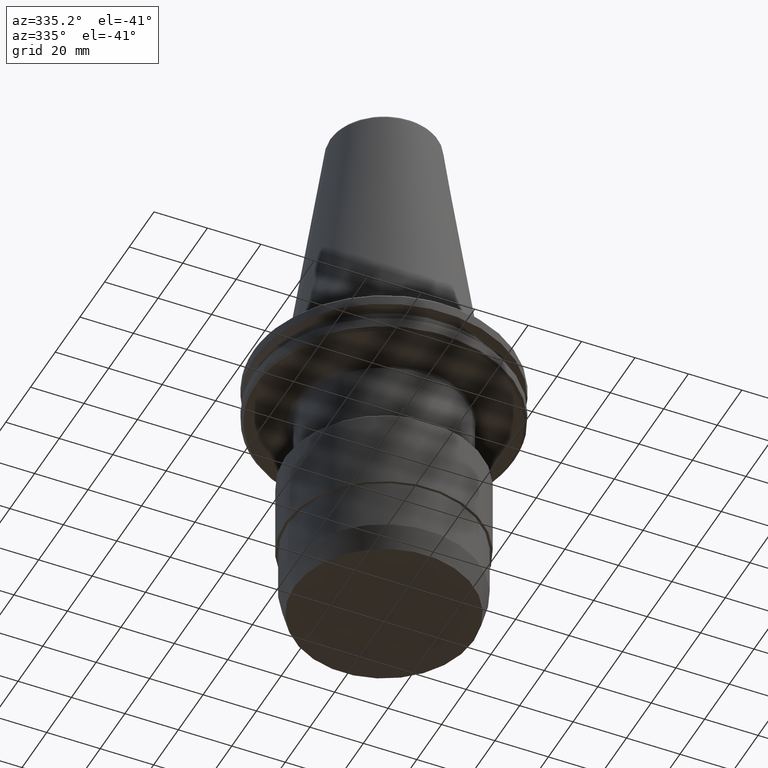
[diagram: clean part render]
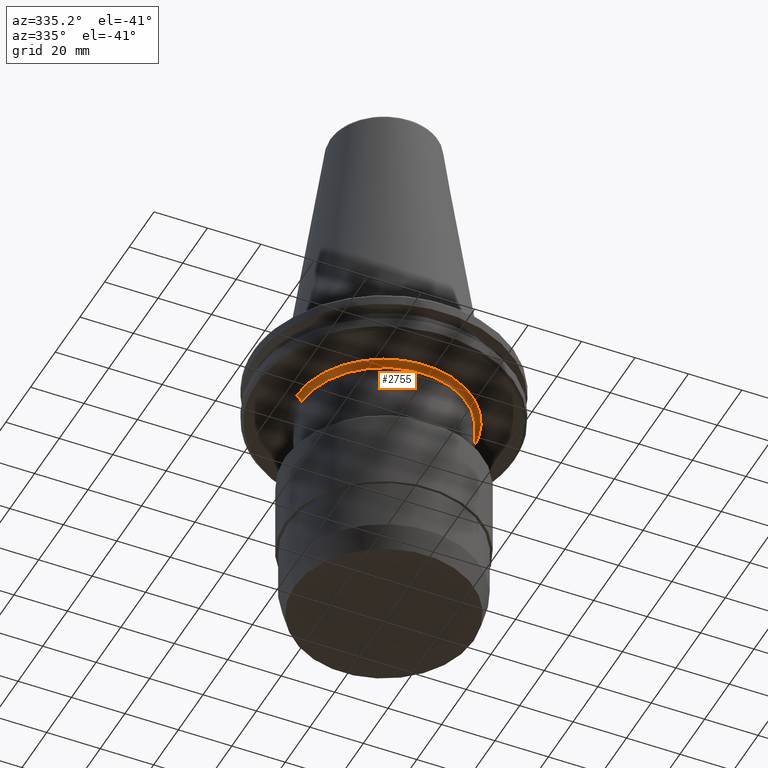
[diagram: same view with one face highlighted and labeled with its STEP entity id]
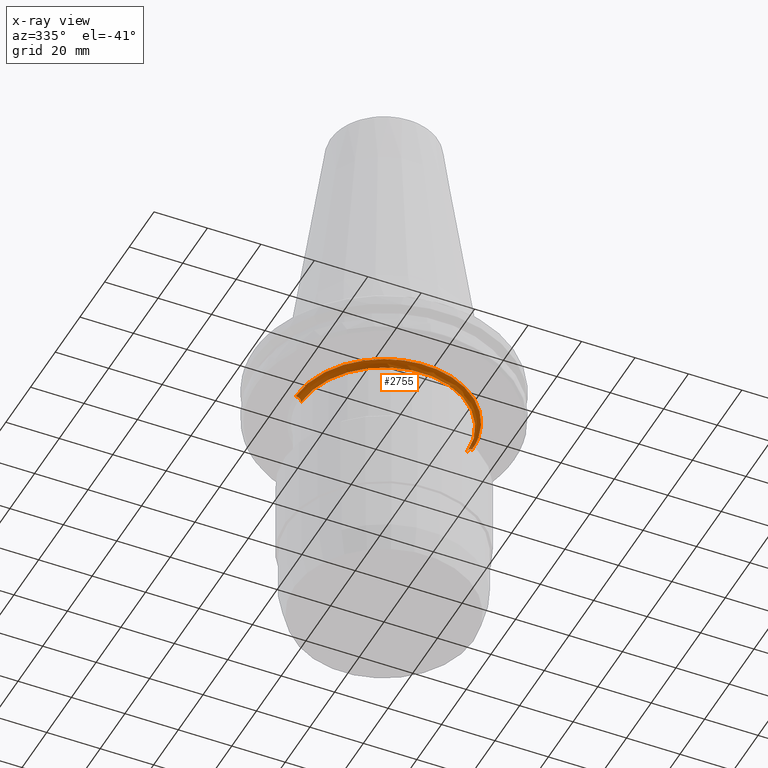
[diagram: x-ray of the same camera — body ghosted, the highlighted face saturated]
A machine part, auxiliary view. The second image highlights one B-rep face of the part: STEP entity #2755.
The next image is the same camera in x-ray: the body ghosted, the highlighted face saturated — about 1% of this face is hidden behind the body in this view.
In plain terms, the highlighted face is a freeform B-spline surface patch.
Its self-contained STEP definition (entity closure, byte-faithful):
#3 = CARTESIAN_POINT ( 'NONE',  ( -33.00000000000000000, -8.082668874372532400E-015, -19.10000000000000500 ) ) ;
#4 = CARTESIAN_POINT ( 'NONE',  ( -32.99999999999999300, -66.00000000000000000, -19.10000000000000900 ) ) ;
#15 = CARTESIAN_POINT ( 'NONE',  ( 33.00000000000000000, 4.041334437186266200E-015, -19.10000000000000500 ) ) ;
#16 = CARTESIAN_POINT ( 'NONE',  ( -31.00000000000000000, 3.796405077356795100E-015, -21.10000000000000900 ) ) ;
#32 = CARTESIAN_POINT ( 'NONE',  ( 33.00000000000001400, -65.99999999999998600, -19.10000000000000900 ) ) ;
#123 = CARTESIAN_POINT ( 'NONE',  ( -33.00000000000000000, 0.0000000000000000000, -19.10000000000000500 ) ) ;
#128 = VERTEX_POINT ( 'NONE', #123 ) ;
#301 = CARTESIAN_POINT ( 'NONE',  ( -19.69420889981899600, -26.49005159273541900, -19.10000000000000900 ) ) ;
#312 = AXIS2_PLACEMENT_3D ( 'NONE', #2924, #2702, #2607 ) ;
#349 = CARTESIAN_POINT ( 'NONE',  ( 33.00000000000000000, 4.041334437186266200E-015, -19.10000000000000500 ) ) ;
#412 = EDGE_CURVE ( 'NONE', #1354, #1244, #2268, .T. ) ;
#480 = CARTESIAN_POINT ( 'NONE',  ( -30.99999999999998600, -61.99999999999999300, -19.92842712474619700 ) ) ;
#508 = CARTESIAN_POINT ( 'NONE',  ( -31.82842712474617000, -63.65685424949239700, -19.10000000000000100 ) ) ;
#528 = EDGE_CURVE ( 'NONE', #128, #1354, #1523, .T. ) ;
#529 = CARTESIAN_POINT ( 'NONE',  ( -31.00000000000000000, -7.592810154713590200E-015, -21.10000000000000900 ) ) ;
#560 = CARTESIAN_POINT ( 'NONE',  ( -27.65980228171582700, -17.99834238863067500, -19.10000000000000100 ) ) ;
#600 = CARTESIAN_POINT ( 'NONE',  ( -30.99999999999999600, -7.592810154713590200E-015, -19.92842712474619700 ) ) ;
#642 = CARTESIAN_POINT ( 'NONE',  ( -28.64517014669141300, -16.40164319880434400, -19.10000000000000500 ) ) ;
#665 = CARTESIAN_POINT ( 'NONE',  ( 31.00000000000001100, -61.99999999999998600, -21.10000000000000900 ) ) ;
#1079 = CARTESIAN_POINT ( 'NONE',  ( 31.00000000000000000, 0.0000000000000000000, -21.10000000000000900 ) ) ;
#1197 = CARTESIAN_POINT ( 'NONE',  ( 17.23542449981276500, -28.14394331460492200, -19.10000000000000900 ) ) ;
#1214 = DIRECTION ( 'NONE',  ( -1.000000000000000000, 0.0000000000000000000, 0.0000000000000000000 ) ) ;
#1217 = DIRECTION ( 'NONE',  ( 0.0000000000000000000, 0.0000000000000000000, -1.000000000000000000 ) ) ;
#1218 = CARTESIAN_POINT ( 'NONE',  ( -30.99999999999998900, -62.00000000000000000, -21.10000000000000900 ) ) ;
#1224 = CARTESIAN_POINT ( 'NONE',  ( 0.0000000000000000000, 0.0000000000000000000, -21.10000000000000900 ) ) ;
#1244 = VERTEX_POINT ( 'NONE', #1079 ) ;
#1354 = VERTEX_POINT ( 'NONE', #349 ) ;
#1412 = CARTESIAN_POINT ( 'NONE',  ( 31.59309167927276700, -9.638225467598976700, -19.10000000000000100 ) ) ;
#1414 = CARTESIAN_POINT ( 'NONE',  ( 32.36113407413535700, -6.464474952554639700, -19.10000000000000500 ) ) ;
#1415 = CARTESIAN_POINT ( 'NONE',  ( 32.26774667589585700, -6.922593852450192200, -19.10000000000000500 ) ) ;
#1426 = CARTESIAN_POINT ( 'NONE',  ( 32.06463893553314600, -7.834105683066375100, -19.10000000000000500 ) ) ;
#1429 = CARTESIAN_POINT ( 'NONE',  ( 31.07691098727549000, -11.15220720857025700, -19.10000000000000500 ) ) ;
#1434 = CARTESIAN_POINT ( 'NONE',  ( 26.49005159282036500, -19.69420889970996000, -19.10000000000000900 ) ) ;
#1438 = CARTESIAN_POINT ( 'NONE',  ( 27.54274512605252700, -18.17697089445549400, -19.10000000000000100 ) ) ;
#1439 = CARTESIAN_POINT ( 'NONE',  ( 27.46410544104509200, -18.29558564976644800, -19.10000000000000500 ) ) ;
#1443 = DIRECTION ( 'NONE',  ( -1.000000000000000000, 0.0000000000000000000, 0.0000000000000000000 ) ) ;
#1445 = DIRECTION ( 'NONE',  ( 0.0000000000000000000, 1.000000000000000000, 0.0000000000000000000 ) ) ;
#1449 = CARTESIAN_POINT ( 'NONE',  ( -33.00000000000000000, 0.0000000000000000000, -21.10000000000000900 ) ) ;
#1452 = CARTESIAN_POINT ( 'NONE',  ( 27.06539996061491500, -18.88417189282748500, -19.10000000000000900 ) ) ;
#1453 = CARTESIAN_POINT ( 'NONE',  ( 27.34561297268945200, -18.47307350529799700, -19.10000000000000900 ) ) ;
#1458 = CARTESIAN_POINT ( 'NONE',  ( 25.27966548264931700, -21.26564384076908000, -19.10000000000000500 ) ) ;
#1463 = CARTESIAN_POINT ( 'NONE',  ( 24.13986703179082800, -22.52920680846682100, -19.10000000000000500 ) ) ;
#1470 = CARTESIAN_POINT ( 'NONE',  ( 21.72383727388655200, -24.94515772053457100, -19.10000000000000900 ) ) ;
#1471 = CARTESIAN_POINT ( 'NONE',  ( 31.82842712474619200, 3.897858140021521800E-015, -19.10000000000000500 ) ) ;
#1475 = CARTESIAN_POINT ( 'NONE',  ( 19.96446500040528000, -26.37443870207417600, -19.10000000000000500 ) ) ;
#1483 = CARTESIAN_POINT ( 'NONE',  ( 32.42448527190173700, -6.136276655387967500, -19.10000000000000900 ) ) ;
#1486 = CARTESIAN_POINT ( 'NONE',  ( 32.81635905258231400, -4.020213482823707300, -19.10000000000000500 ) ) ;
#1488 = CARTESIAN_POINT ( 'NONE',  ( 32.44333837814015500, -6.035789592831669400, -19.10000000000000500 ) ) ;
#1490 = CARTESIAN_POINT ( 'NONE',  ( 32.43685412975239800, -6.070549790571047500, -19.10000000000000900 ) ) ;
#1498 = CARTESIAN_POINT ( 'NONE',  ( 32.40578615526963800, -6.234824756459998300, -19.10000000000000500 ) ) ;
#1503 = CARTESIAN_POINT ( 'NONE',  ( -18.11624915341867800, -27.58271739094574900, -19.09999999999999800 ) ) ;
#1504 = CARTESIAN_POINT ( 'NONE',  ( -13.93922130905154300, -29.92085944579358900, -19.10000000000000500 ) ) ;
#1511 = CARTESIAN_POINT ( 'NONE',  ( 30.65730464508157000, -12.21191437657796900, -19.10000000000000500 ) ) ;
#1513 = CARTESIAN_POINT ( 'NONE',  ( 30.63144917640538300, -12.27662731797503800, -19.10000000000000500 ) ) ;
#1514 = CARTESIAN_POINT ( 'NONE',  ( 30.50066131981627000, -12.59940648868969100, -19.10000000000000900 ) ) ;
#1521 = CARTESIAN_POINT ( 'NONE',  ( -13.04884949535590100, -30.31285136650853200, -19.10000000000000500 ) ) ;
#1523 = B_SPLINE_CURVE_WITH_KNOTS ( 'NONE', 3,
 ( #2788, #2869, #2584, #3252, #3248, #3023, #3152, #3053, #3028, #3033, #3431, #3313, #2732, #2747, #2680, #3129, #2699, #3399, #2374, #3208, #2840, #642, #2836, #2765, #3049, #3051, #560, #2707, #2684, #3079, #1893, #301, #3184, #3383, #2789, #2540, #1503, #2064, #2065, #1504, #1521, #1550, #1549, #1538, #1659, #1665, #2057, #2061, #1670, #1672, #1684, #1660, #3048, #3042, #3039, #2054, #2612, #3000, #2963, #3156, #2948, #2995, #3251, #2949, #3027, #2452, #3203, #2968, #3021, #3017, #3015, #2945, #2942, #2989, #2978, #3038, #3423, #3368, #1197, #2998, #3005, #3426, #3024, #1475, #1470, #1463, #1458, #1434, #1452, #1453, #1439, #1438, #1643, #1633, #2069, #1628, #1626, #1514, #1533, #1513, #1511, #1535, #1429, #1412, #1426, #1415, #1414, #1498, #1483, #1490, #1488, #1486, #1639, #1638 ),
 .UNSPECIFIED., .F., .F.,
 ( 4, 1, 1, 1, 1, 1, 2, 2, 1, 1, 1, 1, 1, 2, 2, 1, 1, 1, 1, 2, 2, 2, 1, 1, 1, 1, 2, 2, 1, 1, 1, 1, 1, 2, 2, 1, 1, 1, 1, 1, 2, 2, 2, 1, 1, 1, 1, 1, 2, 2, 1, 1, 1, 1, 1, 2, 2, 1, 1, 1, 1, 2, 2, 2, 1, 1, 1, 1, 2, 2, 1, 1, 1, 1, 1, 2, 2, 1, 1, 1, 1, 1, 2, 2, 4 ),
 ( 0.0000000000000000000, 0.03124999999999827200, 0.04687499999999740500, 0.05468749999999696100, 0.05859374999999672500, 0.06054687499999662800, 0.06152343749999655800, 0.06249999999999648900, 0.09374999999999315800, 0.1093749999999914800, 0.1171874999999906500, 0.1210937499999902400, 0.1230468749999900800, 0.1240234374999899900, 0.1249999999999899100, 0.1562499999999893100, 0.1718749999999889800, 0.1796874999999887900, 0.1835937499999886800, 0.1855468749999885900, 0.1874999999999885400, 0.2499999999999860700, 0.2812499999999847900, 0.2968749999999841200, 0.3046874999999838500, 0.3085937499999837400, 0.3105468749999836800, 0.3124999999999836200, 0.3437499999999819600, 0.3593749999999810200, 0.3671874999999805700, 0.3710937499999803500, 0.3730468749999802400, 0.3740234374999801800, 0.3749999999999801300, 0.4062499999999796300, 0.4218749999999793500, 0.4296874999999792400, 0.4335937499999791300, 0.4355468749999790700, 0.4365234374999790700, 0.4374999999999790700, 0.4999999999999789100, 0.5312499999999787900, 0.5468749999999789100, 0.5546874999999789100, 0.5585937499999789100, 0.5605468749999789100, 0.5615234374999789100, 0.5624999999999790200, 0.5937499999999806800, 0.6093749999999816800, 0.6171874999999821300, 0.6210937499999823500, 0.6230468749999824600, 0.6240234374999824600, 0.6249999999999825700, 0.6562499999999842300, 0.6718749999999850100, 0.6796874999999855700, 0.6835937499999857900, 0.6855468749999859000, 0.6874999999999860100, 0.7499999999999883400, 0.7812499999999896700, 0.7968749999999902300, 0.8046874999999904500, 0.8085937499999905600, 0.8105468749999905600, 0.8124999999999905600, 0.8437499999999904500, 0.8593749999999903400, 0.8671874999999902300, 0.8710937499999902300, 0.8730468749999902300, 0.8740234374999903400, 0.8749999999999903400, 0.9062499999999920100, 0.9218749999999927800, 0.9296874999999932300, 0.9335937499999934500, 0.9355468749999935600, 0.9365234374999936700, 0.9374999999999936700, 1.000000000000000000 ),
 .UNSPECIFIED. ) ;
#1533 = CARTESIAN_POINT ( 'NONE',  ( 30.59251979469352600, -12.37362071043154200, -19.10000000000000500 ) ) ;
#1535 = CARTESIAN_POINT ( 'NONE',  ( 30.67070465217847200, -12.17821660950965400, -19.10000000000000500 ) ) ;
#1538 = CARTESIAN_POINT ( 'NONE',  ( -12.27662731798220900, -30.63144917640195400, -19.10000000000000900 ) ) ;
#1549 = CARTESIAN_POINT ( 'NONE',  ( -12.37362071044393400, -30.59251979468760000, -19.10000000000000500 ) ) ;
#1550 = CARTESIAN_POINT ( 'NONE',  ( -12.59940648871365600, -30.50066131980478100, -19.10000000000000500 ) ) ;
#1626 = CARTESIAN_POINT ( 'NONE',  ( 30.31285136652998300, -13.04884949531115300, -19.10000000000000500 ) ) ;
#1628 = CARTESIAN_POINT ( 'NONE',  ( 29.92085944583033100, -13.93922130897484200, -19.10000000000000500 ) ) ;
#1633 = CARTESIAN_POINT ( 'NONE',  ( 28.23100353855935700, -17.12468519430765900, -19.10000000000000900 ) ) ;
#1638 = CARTESIAN_POINT ( 'NONE',  ( 33.00000000000000000, 4.041334437186266200E-015, -19.10000000000000500 ) ) ;
#1639 = CARTESIAN_POINT ( 'NONE',  ( 33.00000000000000700, -2.018619906290144000, -19.10000000000000900 ) ) ;
#1643 = CARTESIAN_POINT ( 'NONE',  ( 27.58271739094399800, -18.11624915342231300, -19.10000000000000100 ) ) ;
#1659 = CARTESIAN_POINT ( 'NONE',  ( -12.21191437658160000, -30.65730464507983700, -19.10000000000001200 ) ) ;
#1660 = CARTESIAN_POINT ( 'NONE',  ( -6.234824756460692000, -32.40578615527034900, -19.10000000000000500 ) ) ;
#1665 = CARTESIAN_POINT ( 'NONE',  ( -12.17821660950956200, -30.67070465217836200, -19.10000000000000500 ) ) ;
#1670 = CARTESIAN_POINT ( 'NONE',  ( -7.834105683070666800, -32.06463893553757300, -19.10000000000000500 ) ) ;
#1671 = FACE_OUTER_BOUND ( 'NONE', #3277, .T. ) ;
#1672 = CARTESIAN_POINT ( 'NONE',  ( -6.922593852452704000, -32.26774667589844400, -19.10000000000000500 ) ) ;
#1684 = CARTESIAN_POINT ( 'NONE',  ( -6.464474952555986100, -32.36113407413673600, -19.10000000000000500 ) ) ;
#1812 = CIRCLE ( 'NONE', #2979, 31.00000000000000000 ) ;
#1893 = CARTESIAN_POINT ( 'NONE',  ( -21.26564384091443600, -25.27966548253606000, -19.10000000000000900 ) ) ;
#2054 = CARTESIAN_POINT ( 'NONE',  ( -4.020388787530381000, -32.81632660910636200, -19.10000000000000900 ) ) ;
#2057 = CARTESIAN_POINT ( 'NONE',  ( -11.15220720857355700, -31.07691098727884700, -19.10000000000000500 ) ) ;
#2061 = CARTESIAN_POINT ( 'NONE',  ( -9.638225467604730300, -31.59309167927867900, -19.10000000000000100 ) ) ;
#2064 = CARTESIAN_POINT ( 'NONE',  ( -17.12468519436612300, -28.23100353853133600, -19.10000000000000500 ) ) ;
#2065 = CARTESIAN_POINT ( 'NONE',  ( -15.68590813808745000, -29.07138754787379800, -19.10000000000000100 ) ) ;
#2069 = CARTESIAN_POINT ( 'NONE',  ( 29.07138754792283200, -15.68590813798516100, -19.10000000000000900 ) ) ;
#2264 = ORIENTED_EDGE ( 'NONE', *, *, #528, .F. ) ;
#2268 = CIRCLE ( 'NONE', #312, 2.000000000000001800 ) ;
#2297 = ORIENTED_EDGE ( 'NONE', *, *, #3276, .F. ) ;
#2374 = CARTESIAN_POINT ( 'NONE',  ( -30.69583917976151700, -12.11472802610149600, -19.10000000000000500 ) ) ;
#2452 = CARTESIAN_POINT ( 'NONE',  ( 5.971899675780039600, -32.45516133181610700, -19.10000000000000900 ) ) ;
#2527 = CARTESIAN_POINT ( 'NONE',  ( 31.00000000000000000, 3.796405077356795100E-015, -21.10000000000000900 ) ) ;
#2540 = CARTESIAN_POINT ( 'NONE',  ( -18.17697089446574300, -27.54274512604456100, -19.10000000000000100 ) ) ;
#2584 = CARTESIAN_POINT ( 'NONE',  ( -32.93113464471836200, -2.516578911311095000, -19.10000000000000500 ) ) ;
#2607 = DIRECTION ( 'NONE',  ( 1.000000000000000000, 1.224646799147353500E-016, 0.0000000000000000000 ) ) ;
#2612 = CARTESIAN_POINT ( 'NONE',  ( -2.018089090992612400, -32.99996756787188400, -19.10000000000000500 ) ) ;
#2678 = ORIENTED_EDGE ( 'NONE', *, *, #3235, .T. ) ;
#2680 = CARTESIAN_POINT ( 'NONE',  ( -30.85266157183897200, -11.71092310313990100, -19.10000000000000500 ) ) ;
#2684 = CARTESIAN_POINT ( 'NONE',  ( -24.94515772036846000, -21.72383727401599500, -19.10000000000000900 ) ) ;
#2686 =( BOUNDED_SURFACE ( )  B_SPLINE_SURFACE ( 3, 3, ( 
 ( #15, #32, #4, #3 ),
 ( #1471, #3394, #508, #2937 ),
 ( #3253, #3064, #480, #600 ),
 ( #2527, #665, #1218, #529 ) ),
 .UNSPECIFIED., .F., .F., .T. ) 
 B_SPLINE_SURFACE_WITH_KNOTS ( ( 4, 4 ),
 ( 4, 4 ),
 ( 0.0000000000000000000, 1.000000000000000000 ),
 ( 0.0000000000000000000, 1.000000000000000000 ),
 .UNSPECIFIED. ) 
 GEOMETRIC_REPRESENTATION_ITEM ( )  RATIONAL_B_SPLINE_SURFACE ( (
 ( 1.000000000000000000, 0.3333333333333334300, 0.3333333333333334300, 1.000000000000000000),
 ( 0.8047378541243649400, 0.2682459513747884100, 0.2682459513747884100, 0.8047378541243649400),
 ( 0.8047378541243649400, 0.2682459513747884100, 0.2682459513747884100, 0.8047378541243649400),
 ( 1.000000000000000000, 0.3333333333333334300, 0.3333333333333334300, 1.000000000000000000) ) ) 
 REPRESENTATION_ITEM ( '' )  SURFACE ( )  );
#2699 = CARTESIAN_POINT ( 'NONE',  ( -30.73201991953037600, -12.02264909636002000, -19.10000000000000500 ) ) ;
#2702 = DIRECTION ( 'NONE',  ( 1.224646799147353200E-016, -1.000000000000000000, 0.0000000000000000000 ) ) ;
#2707 = CARTESIAN_POINT ( 'NONE',  ( -26.37443870220443300, -19.96446500023833400, -19.10000000000000900 ) ) ;
#2732 = CARTESIAN_POINT ( 'NONE',  ( -31.32890672740900600, -10.39297457584249300, -19.10000000000000100 ) ) ;
#2747 = CARTESIAN_POINT ( 'NONE',  ( -31.01685958282336100, -11.27316385905604400, -19.10000000000000500 ) ) ;
#2753 = VERTEX_POINT ( 'NONE', #16 ) ;
#2755 = ADVANCED_FACE ( 'NONE', ( #1671 ), #2686, .F. ) ;
#2762 = ORIENTED_EDGE ( 'NONE', *, *, #412, .F. ) ;
#2765 = CARTESIAN_POINT ( 'NONE',  ( -27.88513066897381500, -17.64808367310170900, -19.10000000000000500 ) ) ;
#2788 = CARTESIAN_POINT ( 'NONE',  ( -33.00000000000000000, 0.0000000000000000000, -19.10000000000000500 ) ) ;
#2789 = CARTESIAN_POINT ( 'NONE',  ( -18.29558564978642500, -27.46410544102955200, -19.10000000000000900 ) ) ;
#2836 = CARTESIAN_POINT ( 'NONE',  ( -28.14394331463924500, -17.23542449974815900, -19.10000000000000900 ) ) ;
#2840 = CARTESIAN_POINT ( 'NONE',  ( -29.58202997368095000, -14.70022877996990500, -19.10000000000000100 ) ) ;
#2869 = CARTESIAN_POINT ( 'NONE',  ( -33.00000000000000000, -1.009132182920570200, -19.09999999999999800 ) ) ;
#2924 = CARTESIAN_POINT ( 'NONE',  ( 33.00000000000000000, 4.041334437186266200E-015, -21.10000000000000900 ) ) ;
#2937 = CARTESIAN_POINT ( 'NONE',  ( -31.82842712474619200, -7.795716280043043700E-015, -19.10000000000000500 ) ) ;
#2942 = CARTESIAN_POINT ( 'NONE',  ( 12.02264909636510000, -30.73201991952970100, -19.10000000000000500 ) ) ;
#2945 = CARTESIAN_POINT ( 'NONE',  ( 11.92921887580987300, -30.76851895667272900, -19.10000000000000500 ) ) ;
#2948 = CARTESIAN_POINT ( 'NONE',  ( 5.135398228996168200, -32.59973253784954700, -19.10000000000000500 ) ) ;
#2949 = CARTESIAN_POINT ( 'NONE',  ( 5.880691964595063900, -32.47181009251377000, -19.10000000000000500 ) ) ;
#2963 = CARTESIAN_POINT ( 'NONE',  ( 2.516425545818624900, -32.93116302283046100, -19.10000000000001200 ) ) ;
#2968 = CARTESIAN_POINT ( 'NONE',  ( 8.613912829304522800, -31.88760550703816000, -19.10000000000000100 ) ) ;
#2978 = CARTESIAN_POINT ( 'NONE',  ( 12.11472802609885400, -30.69583917976292000, -19.10000000000000500 ) ) ;
#2979 = AXIS2_PLACEMENT_3D ( 'NONE', #1224, #1217, #1214 ) ;
#2989 = CARTESIAN_POINT ( 'NONE',  ( 12.08490810771707800, -30.70758991335469200, -19.10000000000001200 ) ) ;
#2995 = CARTESIAN_POINT ( 'NONE',  ( 5.570315003910213400, -32.52691600728422800, -19.10000000000000500 ) ) ;
#2998 = CARTESIAN_POINT ( 'NONE',  ( 17.64808367313632300, -27.88513066895541900, -19.10000000000000100 ) ) ;
#3000 = CARTESIAN_POINT ( 'NONE',  ( 1.009044545496299700, -33.00001621606405400, -19.10000000000001200 ) ) ;
#3005 = CARTESIAN_POINT ( 'NONE',  ( 17.82403085946241800, -27.77245398589800700, -19.10000000000000500 ) ) ;
#3015 = CARTESIAN_POINT ( 'NONE',  ( 11.71092310315690500, -30.85266157183674800, -19.10000000000000100 ) ) ;
#3017 = CARTESIAN_POINT ( 'NONE',  ( 11.27316385908779000, -31.01685958281920100, -19.10000000000000900 ) ) ;
#3021 = CARTESIAN_POINT ( 'NONE',  ( 10.39297457589690900, -31.32890672740185800, -19.10000000000000100 ) ) ;
#3023 = CARTESIAN_POINT ( 'NONE',  ( -32.52690935616421800, -5.570350948947514700, -19.10000000000000100 ) ) ;
#3024 = CARTESIAN_POINT ( 'NONE',  ( 17.99834238862544900, -27.65980228171989800, -19.10000000000000100 ) ) ;
#3027 = CARTESIAN_POINT ( 'NONE',  ( 5.942742387935735100, -32.46051088833088000, -19.10000000000001200 ) ) ;
#3028 = CARTESIAN_POINT ( 'NONE',  ( -32.46050988274486600, -5.942747822483040600, -19.10000000000000100 ) ) ;
#3033 = CARTESIAN_POINT ( 'NONE',  ( -32.45516133181594400, -5.971899675781332700, -19.09999999999999800 ) ) ;
#3038 = CARTESIAN_POINT ( 'NONE',  ( 13.18384187771597000, -30.27260610457327400, -19.10000000000000500 ) ) ;
#3039 = CARTESIAN_POINT ( 'NONE',  ( -6.035786853695627800, -32.44333888506945800, -19.10000000000000900 ) ) ;
#3042 = CARTESIAN_POINT ( 'NONE',  ( -6.070549790571248200, -32.43685412975258900, -19.10000000000000100 ) ) ;
#3045 = CIRCLE ( 'NONE', #3409, 2.000000000000001800 ) ;
#3048 = CARTESIAN_POINT ( 'NONE',  ( -6.136276655388368100, -32.42448527190214900, -19.10000000000000900 ) ) ;
#3049 = CARTESIAN_POINT ( 'NONE',  ( -27.77245398590877600, -17.82403085944216100, -19.10000000000000500 ) ) ;
#3051 = CARTESIAN_POINT ( 'NONE',  ( -27.69694575769210600, -17.94112748475872400, -19.09999999999999800 ) ) ;
#3053 = CARTESIAN_POINT ( 'NONE',  ( -32.47180810509576100, -5.880702705314541300, -19.10000000000000100 ) ) ;
#3064 = CARTESIAN_POINT ( 'NONE',  ( 31.00000000000001100, -61.99999999999997900, -19.92842712474619700 ) ) ;
#3079 = CARTESIAN_POINT ( 'NONE',  ( -22.52920680854988300, -24.13986703172610500, -19.10000000000000900 ) ) ;
#3129 = CARTESIAN_POINT ( 'NONE',  ( -30.76851895667389100, -11.92921887580109300, -19.10000000000000500 ) ) ;
#3152 = CARTESIAN_POINT ( 'NONE',  ( -32.48862093597507100, -5.787622819511034900, -19.10000000000000900 ) ) ;
#3156 = CARTESIAN_POINT ( 'NONE',  ( 4.264211531497605500, -32.73029864206433400, -19.10000000000000500 ) ) ;
#3184 = CARTESIAN_POINT ( 'NONE',  ( -18.88417189289107200, -27.06539996056535800, -19.10000000000000100 ) ) ;
#3203 = CARTESIAN_POINT ( 'NONE',  ( 7.056974451864270700, -32.25438358753384400, -19.10000000000000100 ) ) ;
#3208 = CARTESIAN_POINT ( 'NONE',  ( -30.27260610461810900, -13.18384187763158800, -19.10000000000000900 ) ) ;
#3235 = EDGE_CURVE ( 'NONE', #128, #2753, #3045, .T. ) ;
#3248 = CARTESIAN_POINT ( 'NONE',  ( -32.59972012242551600, -5.135465326399124600, -19.10000000000000100 ) ) ;
#3251 = CARTESIAN_POINT ( 'NONE',  ( 5.787604247908428000, -32.48862437238707900, -19.10000000000000100 ) ) ;
#3252 = CARTESIAN_POINT ( 'NONE',  ( -32.73027735848026500, -4.264326555616960100, -19.09999999999999800 ) ) ;
#3253 = CARTESIAN_POINT ( 'NONE',  ( 30.99999999999999600, 3.796405077356795100E-015, -19.92842712474619700 ) ) ;
#3276 = EDGE_CURVE ( 'NONE', #1244, #2753, #1812, .T. ) ;
#3277 = EDGE_LOOP ( 'NONE', ( #2762, #2264, #2678, #2297 ) ) ;
#3313 = CARTESIAN_POINT ( 'NONE',  ( -31.88760550704770200, -8.613912829231972900, -19.10000000000000500 ) ) ;
#3368 = CARTESIAN_POINT ( 'NONE',  ( 16.40164319891511400, -28.64517014663255500, -19.10000000000000500 ) ) ;
#3383 = CARTESIAN_POINT ( 'NONE',  ( -18.47307350533208500, -27.34561297266289500, -19.10000000000000500 ) ) ;
#3394 = CARTESIAN_POINT ( 'NONE',  ( 31.82842712474619900, -63.65685424949238300, -19.10000000000000100 ) ) ;
#3399 = CARTESIAN_POINT ( 'NONE',  ( -30.70758991335503300, -12.08490810771450800, -19.10000000000000100 ) ) ;
#3409 = AXIS2_PLACEMENT_3D ( 'NONE', #1449, #1445, #1443 ) ;
#3423 = CARTESIAN_POINT ( 'NONE',  ( 14.70022878011760200, -29.58202997360249900, -19.10000000000000900 ) ) ;
#3426 = CARTESIAN_POINT ( 'NONE',  ( 17.94112748476909400, -27.69694575768659600, -19.10000000000000100 ) ) ;
#3431 = CARTESIAN_POINT ( 'NONE',  ( -32.25438358753929400, -7.056974451822817700, -19.10000000000000100 ) ) ;